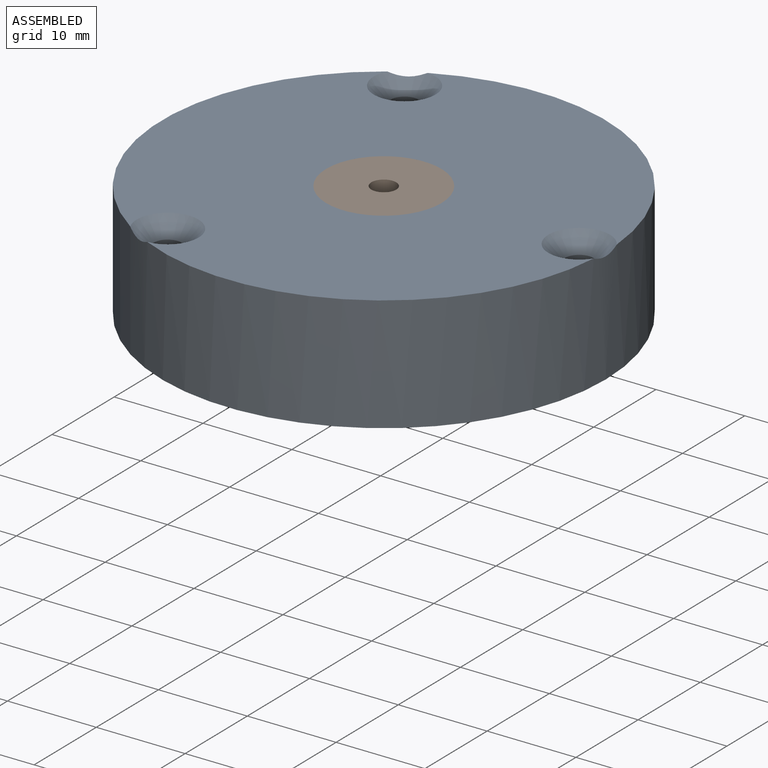
[diagram: assembled view]
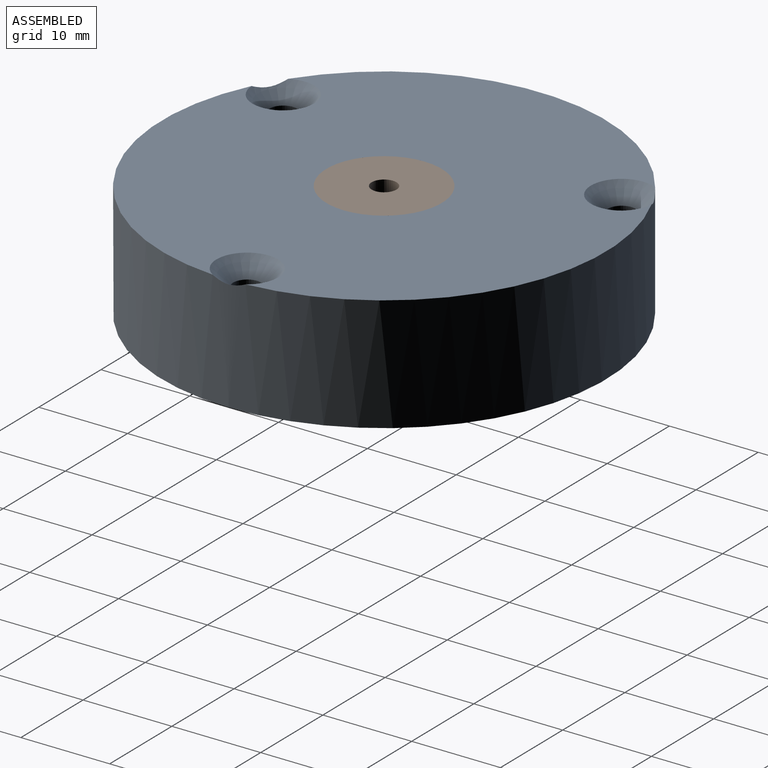
[diagram: assembled view, second angle]
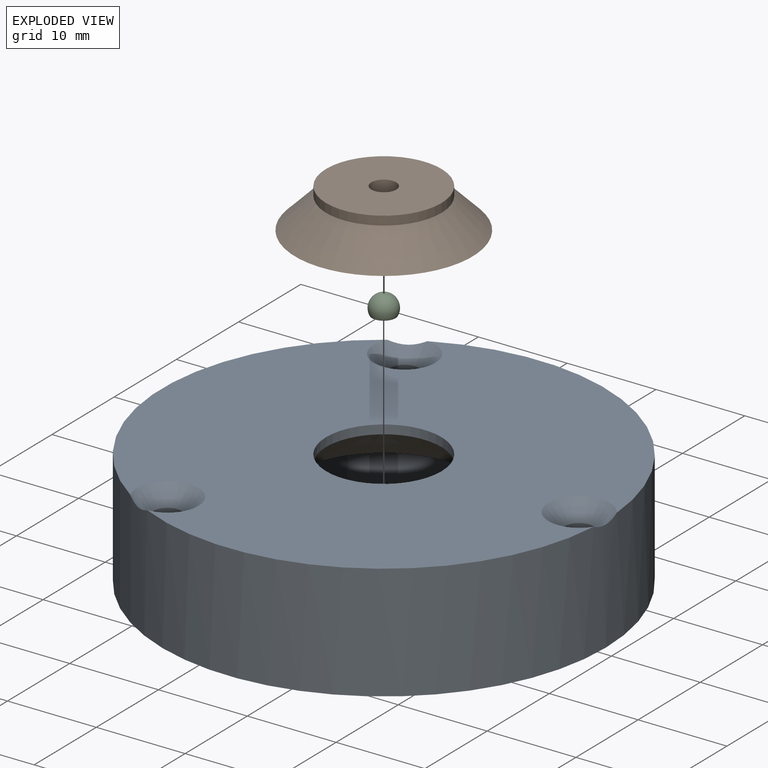
[diagram: exploded view]
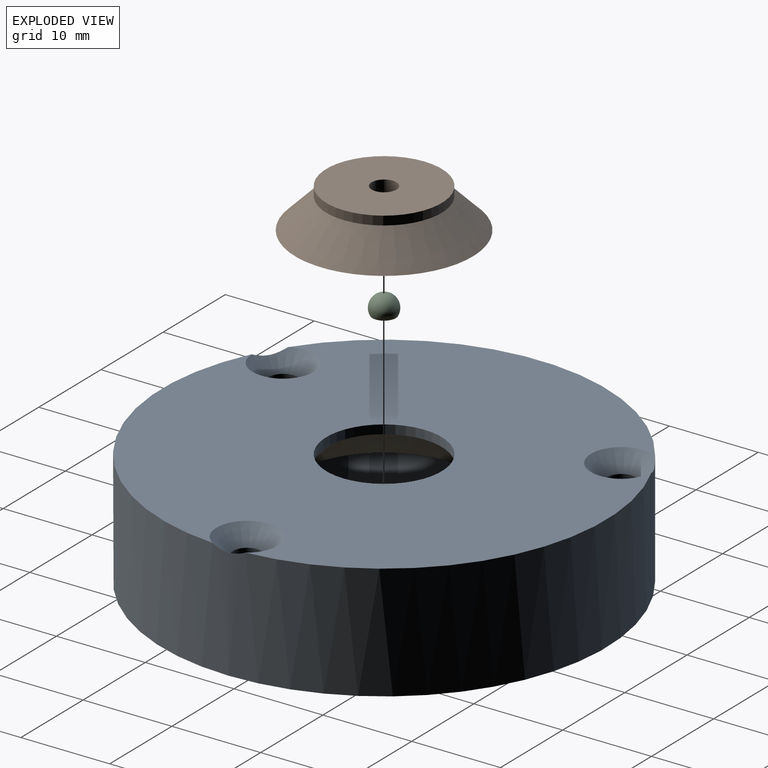
[diagram: exploded view, second angle]
ASSEMBLY  parts=3 mates=4
PART A: 16 faces, bbox 50.5x50x13 mm
  f0: cylinder r=1.6mm len=11.13mm, axis (0,0,1), area 111.9mm2, adj f1,f4
  f1: cone r=3.47mm half-angle=45deg, axis (0,0,1), area 40.4mm2, adj f0,f5,f6
  f2: cylinder r=1.6mm len=11.13mm, axis (0,0,1), area 111.9mm2, adj f3,f4
  f3: cone r=3.47mm half-angle=45deg, axis (0,0,1), area 40.4mm2, adj f2,f5,f6
  f4: plane 50x50mm, normal (0,0,-1), area 1127.1mm2, adj f0,f2,f5,f7,f8,f9,f10,f12
  f5: cylinder r=25mm len=50mm, axis (0,0,-1), area 2038.6mm2, adj f1,f3,f4,f6,f13
  f6: plane 50x49.93mm, normal (0,0,1), area 1720.8mm2, adj f1,f3,f5,f13,f14
  f7: plane 28.5x8.5mm, normal (1,0,0), area 242.3mm2, adj f4,f8,f10,f11
  f8: plane 28.5x8.5mm, normal (0,1,0), area 242.2mm2, adj f4,f7,f9,f11
  f9: plane 28.5x8.5mm, normal (-1,0,0), area 242.2mm2, adj f4,f8,f10,f11
  f10: plane 28.5x8.5mm, normal (0,-1,0), area 242.2mm2, adj f4,f7,f9,f11
  f11: plane 28.5x28.5mm, normal (0,0,-1), area 498.1mm2, adj f7,f8,f9,f10,f15
  f12: cylinder r=1.6mm len=11.13mm, axis (0,0,1), area 111.9mm2, adj f4,f13
  f13: cone r=3.47mm half-angle=45deg, axis (0,0,1), area 40.4mm2, adj f5,f6,f12
  f14: cylinder r=6.5mm len=13mm, axis (0,0,1), area 40.8mm2, adj f6,f15
  f15: cone r=6.5mm half-angle=45deg, axis (0,0,-1), area 256.6mm2, adj f11,f14
PART B: 6 faces, bbox 20x20x4.5 mm
  f0: plane 20x20mm, normal (0,0,-1), area 294.5mm2, adj f1,f5
  f1: cone r=10mm half-angle=45deg, axis (0,0,-1), area 256.6mm2, adj f0,f2
  f2: cylinder r=6.5mm len=13mm, axis (0,0,-1), area 40.8mm2, adj f1,f3
  f3: plane 13x13mm, normal (0,0,1), area 126.6mm2, adj f2,f4
  f4: cylinder r=1.4mm len=3.58mm, axis (0,0,1), area 31.5mm2, adj f3,f5
  f5: cone r=2.5mm half-angle=50.2deg, axis (0,0,-1), area 17.5mm2, adj f0,f4
PART C: 2 faces, bbox 3x3x2.2 mm
  f0: sphere r=1.5mm, area 20.7mm2, adj f1
  f1: plane 2.65x2.65mm, normal (0,0,-1), area 5.5mm2, adj f0
PLACE A t=(-5.14,9.29,11.76)mm
PLACE B t=(-5.14,9.29,20.26)mm
PLACE C t=(-5.14,9.29,19.46)mm
MATE planar B.f1 <-> A.f11  axis (0,0,-1) through (-5.14,9.29,20.26)mm
MATE planar C.f1 <-> B.f1  axis (0,0,-1) through (-5.14,9.29,20.26)mm
MATE cylindrical B.f1 <-> A.f15  axis (0,0,-1) through (-5.14,9.29,23.76)mm
MATE cylindrical C.f1 <-> B.f4  axis (0,0,-1) through (-5.14,9.29,20.26)mm
